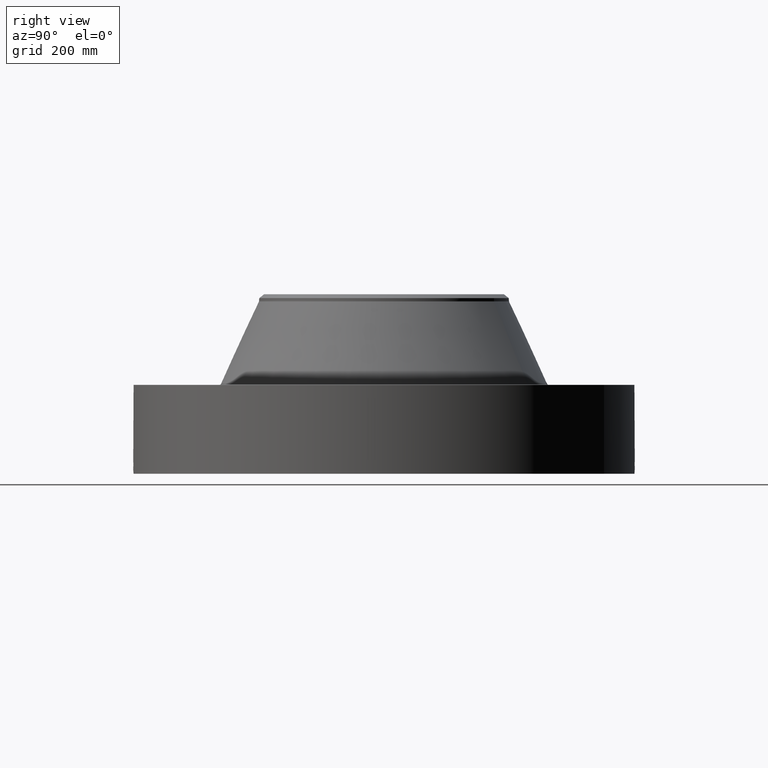
[diagram: clean part render]
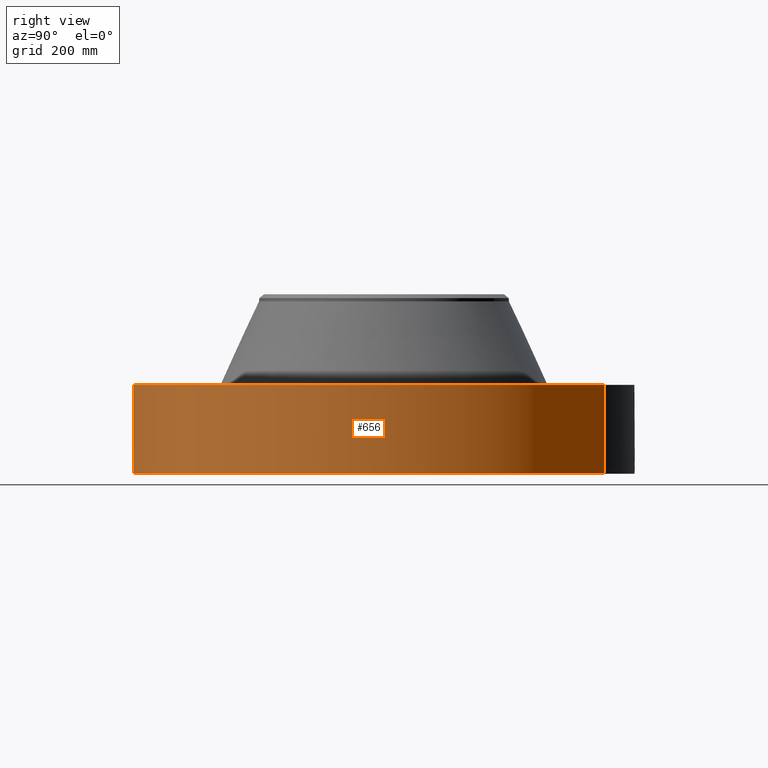
[diagram: same view with one face highlighted and labeled with its STEP entity id]
A machine part, right view. The second image highlights one B-rep face of the part: STEP entity #656.
In plain terms, the highlighted cylindrical surface (partial cylindrical patch) has radius 457.2 mm, axis along (0, 0, -1).
Its self-contained STEP definition (entity closure, byte-faithful):
#38=AXIS2_PLACEMENT_3D('Cylinder Axis2P3D',#35,#36,#37) ;
#169=AXIS2_PLACEMENT_3D('Circle Axis2P3D',#167,#168,$) ;
#560=AXIS2_PLACEMENT_3D('Circle Axis2P3D',#558,#559,$) ;
#35=CARTESIAN_POINT('Axis2P3D Location',(0.,0.,6.69000000003)) ;
#44=CARTESIAN_POINT('Vertex',(-8.62965969491,-15.7964861141,0.250000000001)) ;
#46=CARTESIAN_POINT('Vertex',(8.62965969491,15.7964861141,0.250000000001)) ;
#49=CARTESIAN_POINT('Line Origine',(-8.62965969491,-15.7964861141,3.44000000001)) ;
#53=CARTESIAN_POINT('Vertex',(-8.62965969491,-15.7964861141,6.63000000003)) ;
#60=CARTESIAN_POINT('Vertex',(8.62965969491,15.7964861141,6.63000000003)) ;
#63=CARTESIAN_POINT('Line Origine',(8.62965969491,15.7964861141,3.44000000001)) ;
#167=CARTESIAN_POINT('Axis2P3D Location',(0.,0.,0.250000000001)) ;
#558=CARTESIAN_POINT('Axis2P3D Location',(0.,0.,6.63000000003)) ;
#570=CARTESIAN_POINT('Control Point',(0.000715916267368,-17.9999999858,1.29411846164)) ;
#571=CARTESIAN_POINT('Control Point',(0.018794767012,-17.9999992668,1.29408195945)) ;
#572=CARTESIAN_POINT('Control Point',(0.0368704907798,-17.9999710998,1.29265734615)) ;
#573=CARTESIAN_POINT('Control Point',(0.054731662832,-17.99991679,1.28986144223)) ;
#574=CARTESIAN_POINT('Vertex',(0.00071561728658,-17.9999999858,1.2941185108)) ;
#576=CARTESIAN_POINT('Vertex',(0.054723070488,-17.9999170677,1.28986280481)) ;
#580=CARTESIAN_POINT('Control Point',(0.054722976633,-17.9999168164,1.28986226213)) ;
#581=CARTESIAN_POINT('Control Point',(0.0953738332169,-17.9997932305,1.28552531456)) ;
#582=CARTESIAN_POINT('Control Point',(0.135409945979,-17.9995285052,1.27380449255)) ;
#583=CARTESIAN_POINT('Control Point',(0.172317078189,-17.9991751707,1.25545477223)) ;
#584=CARTESIAN_POINT('Vertex',(0.172317078189,-17.9991751707,1.25545477223)) ;
#588=CARTESIAN_POINT('Control Point',(0.0311785035352,-17.9999729973,0.531201562891)) ;
#589=CARTESIAN_POINT('Control Point',(0.0718024994826,-17.9999026308,0.536338161164)) ;
#590=CARTESIAN_POINT('Control Point',(0.111634499029,-17.9997190308,0.546728855769)) ;
#591=CARTESIAN_POINT('Control Point',(0.149741617253,-17.9994324956,0.562218507291)) ;
#592=CARTESIAN_POINT('Control Point',(0.239620396431,-17.9985293262,0.613169843037)) ;
#593=CARTESIAN_POINT('Control Point',(0.30880624951,-17.9974126624,0.690006161425)) ;
#594=CARTESIAN_POINT('Control Point',(0.340722284388,-17.9967939004,0.743754792609)) ;
#595=CARTESIAN_POINT('Control Point',(0.375373751684,-17.9960901162,0.84105982159)) ;
#596=CARTESIAN_POINT('Control Point',(0.377750076789,-17.9960345675,0.942362779015)) ;
#597=CARTESIAN_POINT('Control Point',(0.373383149154,-17.9961284653,0.982905031435)) ;
#598=CARTESIAN_POINT('Control Point',(0.350799748707,-17.9966011635,1.07574548388)) ;
#599=CARTESIAN_POINT('Control Point',(0.300979187994,-17.9975215948,1.15733410863)) ;
#600=CARTESIAN_POINT('Control Point',(0.264028464035,-17.9981368945,1.19844198089)) ;
#601=CARTESIAN_POINT('Control Point',(0.22035385151,-17.9987152854,1.23157154258)) ;
#602=CARTESIAN_POINT('Control Point',(0.172317078189,-17.9991751707,1.25545477223)) ;
#603=CARTESIAN_POINT('Vertex',(0.0311785035352,-17.9999729973,0.531201562891)) ;
#607=CARTESIAN_POINT('Control Point',(0.0311785035352,-17.9999729973,0.531201562891)) ;
#608=CARTESIAN_POINT('Control Point',(0.0207810348001,-17.9999910072,0.530876353489)) ;
#609=CARTESIAN_POINT('Control Point',(0.0103754059314,-18.0000000016,0.5309342353)) ;
#610=CARTESIAN_POINT('Control Point',(-2.72878352964E-006,-18.0000000001,0.531374667806)) ;
#611=CARTESIAN_POINT('Vertex',(-2.72878354635E-006,-18.0000000001,0.531374667806)) ;
#615=CARTESIAN_POINT('Control Point',(-0.192490992805,-17.9989707267,0.587658904988)) ;
#616=CARTESIAN_POINT('Control Point',(-0.148953542637,-17.9994363404,0.562184957814)) ;
#617=CARTESIAN_POINT('Control Point',(-0.101107482184,-17.9998082664,0.543830382583)) ;
#618=CARTESIAN_POINT('Control Point',(-0.0508027302724,-17.9999999924,0.533530543736)) ;
#619=CARTESIAN_POINT('Control Point',(-2.72878352964E-006,-18.0000000001,0.531374667806)) ;
#620=CARTESIAN_POINT('Vertex',(-0.192490992805,-17.9989707267,0.587658904988)) ;
#624=CARTESIAN_POINT('Control Point',(-0.192490992805,-17.9989707267,0.587658904988)) ;
#625=CARTESIAN_POINT('Control Point',(-0.249225140603,-17.9983639802,0.620854295763)) ;
#626=CARTESIAN_POINT('Control Point',(-0.299118627316,-17.9976068279,0.665382621857)) ;
#627=CARTESIAN_POINT('Control Point',(-0.339016736004,-17.9968404577,0.71962046163)) ;
#628=CARTESIAN_POINT('Control Point',(-0.382904584864,-17.9959349998,0.817936937136)) ;
#629=CARTESIAN_POINT('Control Point',(-0.391223224511,-17.9957468042,0.923210605853)) ;
#630=CARTESIAN_POINT('Control Point',(-0.389017375883,-17.9957960737,0.963428947568)) ;
#631=CARTESIAN_POINT('Control Point',(-0.369349141315,-17.9962276358,1.06643517054)) ;
#632=CARTESIAN_POINT('Control Point',(-0.315771155096,-17.9972806993,1.15717933693)) ;
#633=CARTESIAN_POINT('Control Point',(-0.271217967045,-17.9980645582,1.20479213957)) ;
#634=CARTESIAN_POINT('Control Point',(-0.190427156312,-17.9991387671,1.26072522641)) ;
#635=CARTESIAN_POINT('Control Point',(-0.09850972744,-17.9997740421,1.28789388359)) ;
#636=CARTESIAN_POINT('Control Point',(-0.0657534719828,-17.9999256067,1.29368529426)) ;
#637=CARTESIAN_POINT('Control Point',(-0.0327250899367,-18.0000000471,1.29575873174)) ;
#638=CARTESIAN_POINT('Control Point',(2.58579355424E-005,-18.0000000001,1.29415298429)) ;
#639=CARTESIAN_POINT('Vertex',(2.58579355492E-005,-18.0000000001,1.29415298429)) ;
#643=CARTESIAN_POINT('Control Point',(0.000715617277093,-17.9999999858,1.29411851078)) ;
#644=CARTESIAN_POINT('Control Point',(0.000370762243298,-17.9999999996,1.29413607398)) ;
#645=CARTESIAN_POINT('Control Point',(2.58579404369E-005,-18.0000000001,1.29415298429)) ;
#36=DIRECTION('Axis2P3D Direction',(0.,0.,-0.0393700787402)) ;
#37=DIRECTION('Axis2P3D XDirection',(0.0188750212049,0.0345504945626,0.)) ;
#50=DIRECTION('Vector Direction',(0.,0.,-0.0393700787402)) ;
#64=DIRECTION('Vector Direction',(0.,0.,-0.0393700787402)) ;
#168=DIRECTION('Axis2P3D Direction',(0.,0.,-0.0393700787402)) ;
#559=DIRECTION('Axis2P3D Direction',(0.,0.,-0.0393700787402)) ;
#51=VECTOR('Line Direction',#50,0.0393700787402) ;
#65=VECTOR('Line Direction',#64,0.0393700787402) ;
#564=ORIENTED_EDGE('',*,*,#171,.F.) ;
#565=ORIENTED_EDGE('',*,*,#67,.T.) ;
#566=ORIENTED_EDGE('',*,*,#562,.T.) ;
#567=ORIENTED_EDGE('',*,*,#55,.F.) ;
#648=ORIENTED_EDGE('',*,*,#578,.T.) ;
#649=ORIENTED_EDGE('',*,*,#586,.T.) ;
#650=ORIENTED_EDGE('',*,*,#605,.F.) ;
#651=ORIENTED_EDGE('',*,*,#613,.T.) ;
#652=ORIENTED_EDGE('',*,*,#622,.F.) ;
#653=ORIENTED_EDGE('',*,*,#641,.T.) ;
#654=ORIENTED_EDGE('',*,*,#646,.F.) ;
#655=FACE_BOUND('',#647,.T.) ;
#656=ADVANCED_FACE('PartBody',(#568,#655),#39,.T.) ;
#569=B_SPLINE_CURVE_WITH_KNOTS('',3,(#570,#571,#572,#573),.UNSPECIFIED.,.F.,.U.,(4,4),(34.6167850397,36.622461494),.UNSPECIFIED.) ;
#579=B_SPLINE_CURVE_WITH_KNOTS('',3,(#580,#581,#582,#583),.UNSPECIFIED.,.F.,.U.,(4,4),(0.,4.5936315568),.UNSPECIFIED.) ;
#587=B_SPLINE_CURVE_WITH_KNOTS('',5,(#588,#589,#590,#591,#592,#593,#594,#595,#596,#597,#598,#599,#600,#601,#602),.UNSPECIFIED.,.F.,.U.,(6,3,3,3,6),(0.,7.11615119094,18.002519968,25.340969091,35.305765974),.UNSPECIFIED.) ;
#606=B_SPLINE_CURVE_WITH_KNOTS('',3,(#607,#608,#609,#610),.UNSPECIFIED.,.F.,.U.,(4,4),(0.,1.08463646199),.UNSPECIFIED.) ;
#614=B_SPLINE_CURVE_WITH_KNOTS('',4,(#615,#616,#617,#618,#619),.UNSPECIFIED.,.F.,.U.,(5,5),(0.,7.07892575868),.UNSPECIFIED.) ;
#623=B_SPLINE_CURVE_WITH_KNOTS('',5,(#624,#625,#626,#627,#628,#629,#630,#631,#632,#633,#634,#635,#636,#637,#638),.UNSPECIFIED.,.F.,.U.,(6,3,3,3,6),(0.,11.5307860729,18.6312315219,30.1312120298,36.2530440875),.UNSPECIFIED.) ;
#642=B_SPLINE_CURVE_WITH_KNOTS('',2,(#643,#644,#645),.UNSPECIFIED.,.F.,.U.,(3,3),(1.01704989143,1.04283780222),.UNSPECIFIED.) ;
#170=CIRCLE('generated circle',#169,18.0000000001) ;
#561=CIRCLE('generated circle',#560,18.0000000001) ;
#39=CYLINDRICAL_SURFACE('generated cylinder',#38,18.0000000001) ;
#55=EDGE_CURVE('',#45,#54,#52,.F.) ;
#67=EDGE_CURVE('',#47,#61,#66,.F.) ;
#171=EDGE_CURVE('',#47,#45,#170,.T.) ;
#562=EDGE_CURVE('',#61,#54,#561,.T.) ;
#578=EDGE_CURVE('',#575,#577,#569,.T.) ;
#586=EDGE_CURVE('',#577,#585,#579,.T.) ;
#605=EDGE_CURVE('',#604,#585,#587,.T.) ;
#613=EDGE_CURVE('',#604,#612,#606,.T.) ;
#622=EDGE_CURVE('',#621,#612,#614,.T.) ;
#641=EDGE_CURVE('',#621,#640,#623,.T.) ;
#646=EDGE_CURVE('',#575,#640,#642,.T.) ;
#563=EDGE_LOOP('',(#564,#565,#566,#567)) ;
#647=EDGE_LOOP('',(#648,#649,#650,#651,#652,#653,#654)) ;
#568=FACE_OUTER_BOUND('',#563,.T.) ;
#52=LINE('Line',#49,#51) ;
#66=LINE('Line',#63,#65) ;
#45=VERTEX_POINT('',#44) ;
#47=VERTEX_POINT('',#46) ;
#54=VERTEX_POINT('',#53) ;
#61=VERTEX_POINT('',#60) ;
#575=VERTEX_POINT('',#574) ;
#577=VERTEX_POINT('',#576) ;
#585=VERTEX_POINT('',#584) ;
#604=VERTEX_POINT('',#603) ;
#612=VERTEX_POINT('',#611) ;
#621=VERTEX_POINT('',#620) ;
#640=VERTEX_POINT('',#639) ;